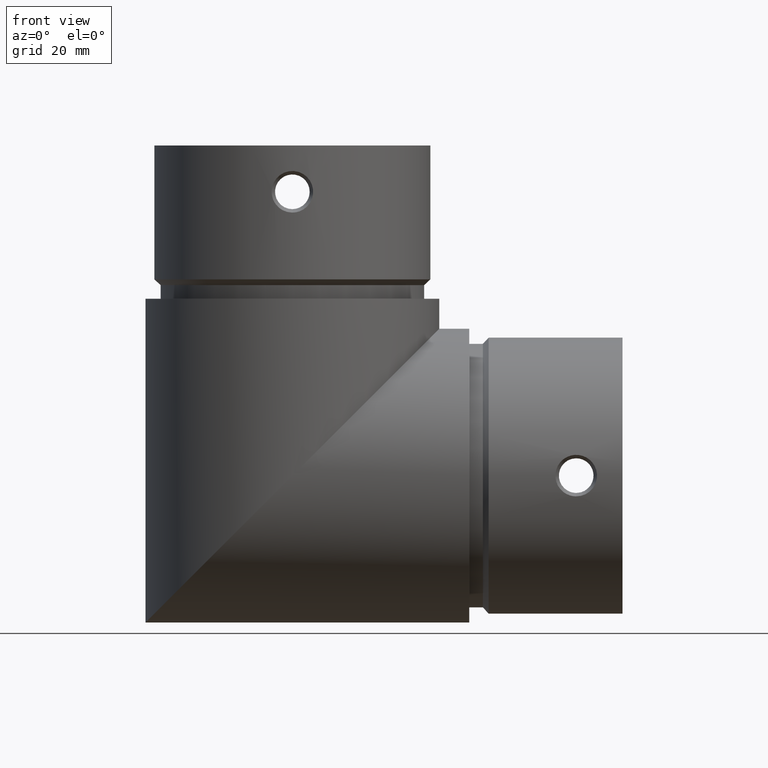
[diagram: clean part render]
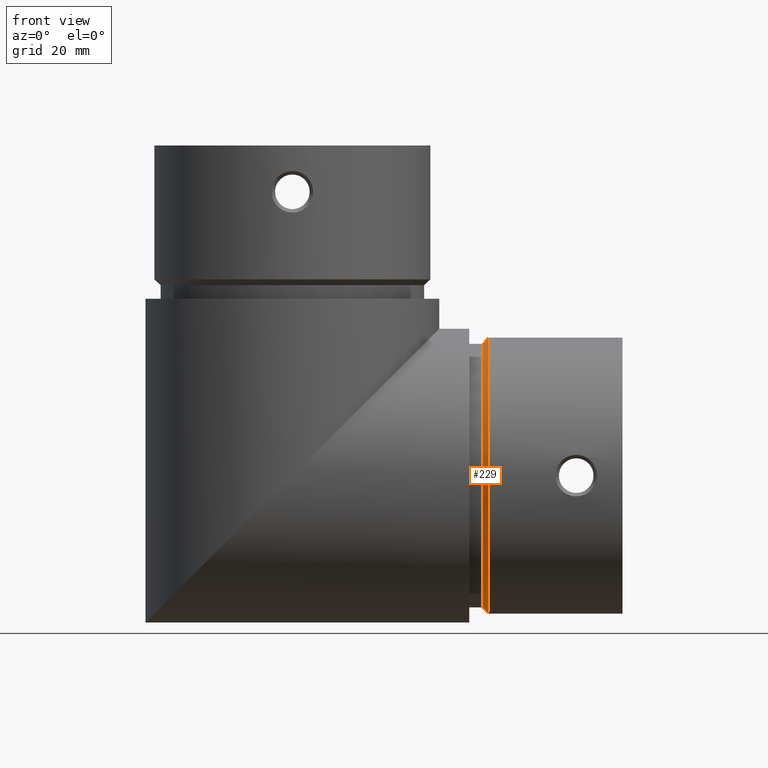
[diagram: same view with one face highlighted and labeled with its STEP entity id]
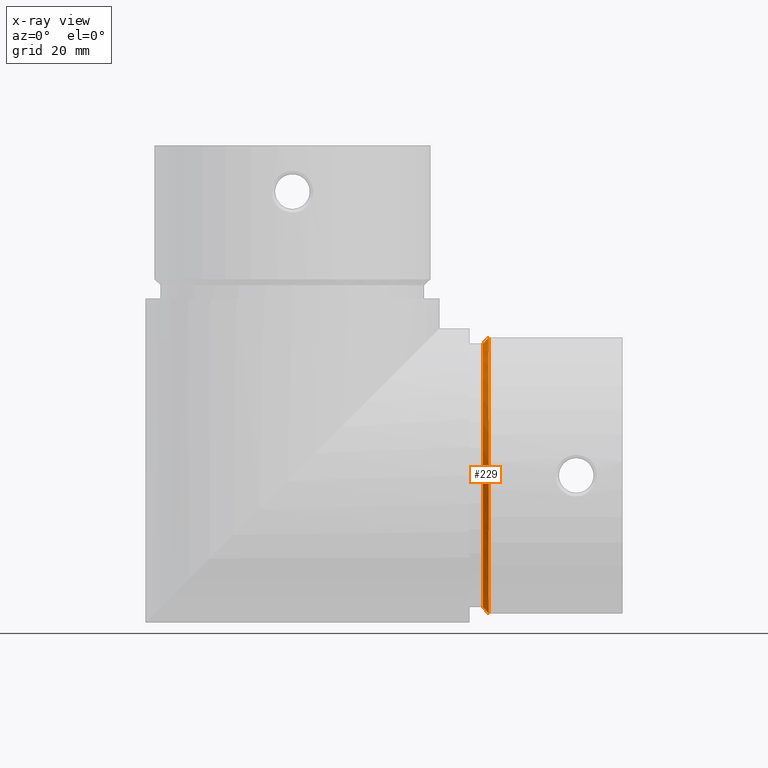
[diagram: x-ray of the same camera — body ghosted, the highlighted face saturated]
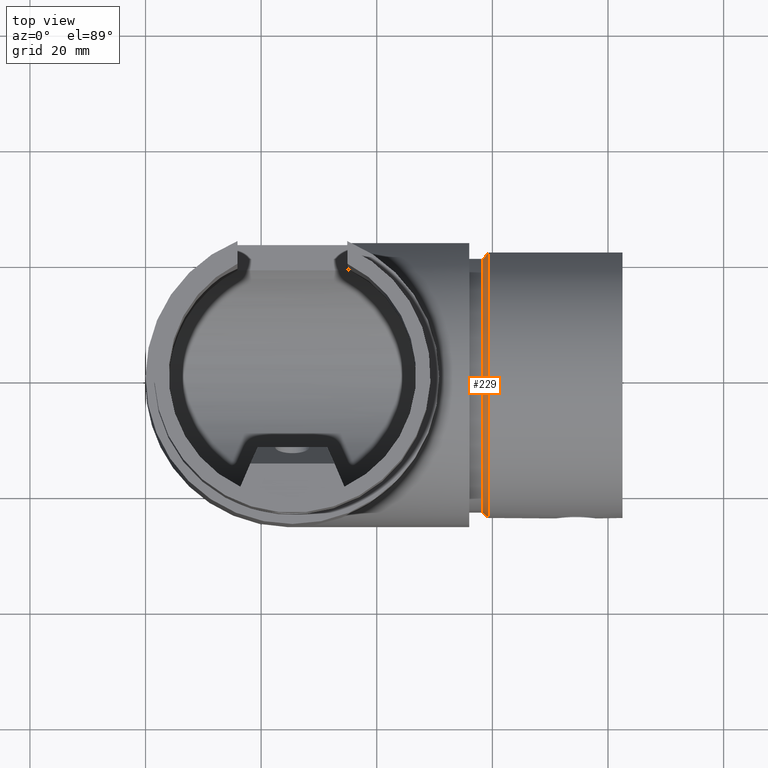
[diagram: same view with one face highlighted and labeled with its STEP entity id]
A machine part, front view. The second image highlights one B-rep face of the part: STEP entity #229.
The next image is the same camera in x-ray: the body ghosted, the highlighted face saturated — about 0% of this face is hidden behind the body in this view.
A second angle (top view) of the same face is appended — the face is thin or edge-on in the first view.
In plain terms, the highlighted conical surface has half-angle 45 deg.
Its self-contained STEP definition (entity closure, byte-faithful):
#229=ADVANCED_FACE('',(#550),#552,.T.);
#550=FACE_BOUND('',#551,.T.);
#551=EDGE_LOOP('',(#1080,#1081,#1082,#1083));
#552=CONICAL_SURFACE('',#553,23.4,0.785398163408186);
#553=AXIS2_PLACEMENT_3D('',#554,#555,#556);
#554=CARTESIAN_POINT('',(58.8478819027745,0.,25.4));
#555=DIRECTION('',(1.,0.,-2.84263758669348E-016));
#556=DIRECTION('',(0.,-1.,0.));
#1080=ORIENTED_EDGE('',*,*,#1245,.F.);
#1081=ORIENTED_EDGE('',*,*,#1246,.T.);
#1082=ORIENTED_EDGE('',*,*,#1247,.F.);
#1083=ORIENTED_EDGE('',*,*,#1191,.F.);
#1191=EDGE_CURVE('',#1312,#1315,#1316,.T.);
#1245=EDGE_CURVE('',#1405,#1312,#1407,.T.);
#1246=EDGE_CURVE('',#1405,#1408,#1409,.T.);
#1247=EDGE_CURVE('',#1315,#1408,#1410,.F.);
#1312=VERTEX_POINT('',#1598);
#1315=VERTEX_POINT('',#1603);
#1316=CIRCLE('',#1604,23.9);
#1405=VERTEX_POINT('',#1988);
#1407=B_SPLINE_CURVE_WITH_KNOTS('',3,
(#1992,#1993,#1994,#1995,#1996,#1997),
.UNSPECIFIED.,.F.,.F.,
(4,1,1,4),
(0.,0.244460279141364,0.577793612474697,1.),
.UNSPECIFIED.);
#1408=VERTEX_POINT('',#1998);
#1409=CIRCLE('',#1999,22.9);
#1410=B_SPLINE_CURVE_WITH_KNOTS('',3,
(#2003,#2004,#2005,#2006,#2007,#2008),
.UNSPECIFIED.,.F.,.F.,
(4,1,1,4),
(0.,0.244460279141383,0.577793612474717,1.),
.UNSPECIFIED.);
#1598=CARTESIAN_POINT('',(59.3478819027637,21.9308002589965,34.9));
#1603=CARTESIAN_POINT('',(59.3478819027637,21.9308002589965,15.9));
#1604=AXIS2_PLACEMENT_3D('',#1605,#1606,#1607);
#1605=CARTESIAN_POINT('',(59.3478819027637,0.,25.4));
#1606=DIRECTION('',(1.,0.,-2.84263758669348E-016));
#1607=DIRECTION('',(1.12991870600787E-016,0.917606705397342,0.397489539748955));
#1988=CARTESIAN_POINT('',(58.3478819027852,20.8365064250224,34.9));
#1992=CARTESIAN_POINT('',(58.3478819027852,20.8365064250224,34.9));
#1993=CARTESIAN_POINT('',(58.4291767567087,20.9258520029005,34.8999999982072));
#1994=CARTESIAN_POINT('',(58.6214371575471,21.1369188920234,34.8999999983688));
#1995=CARTESIAN_POINT('',(58.9546457031597,21.501798154864,34.9000000065536));
#1996=CARTESIAN_POINT('',(59.2068306235592,21.7770833270763,34.9000000069562));
#1997=CARTESIAN_POINT('',(59.3478819027637,21.9308002589965,34.9));
#1998=CARTESIAN_POINT('',(58.3478819027852,20.8365064250224,15.9));
#1999=AXIS2_PLACEMENT_3D('',#2000,#2001,#2002);
#2000=CARTESIAN_POINT('',(58.3478819027852,0.,25.4));
#2001=DIRECTION('',(1.,0.,-2.84263758669348E-016));
#2002=DIRECTION('',(1.17926013421782E-016,0.909891110262987,0.414847161572053));
#2003=CARTESIAN_POINT('',(58.3478819027852,20.8365064250224,15.9));
#2004=CARTESIAN_POINT('',(58.4291767567087,20.9258520029005,15.9000000017928));
#2005=CARTESIAN_POINT('',(58.6214371575471,21.1369188920234,15.9000000016312));
#2006=CARTESIAN_POINT('',(58.9546457031597,21.501798154864,15.8999999934463));
#2007=CARTESIAN_POINT('',(59.2068306235592,21.7770833270763,15.8999999930438));
#2008=CARTESIAN_POINT('',(59.3478819027637,21.9308002589965,15.9));